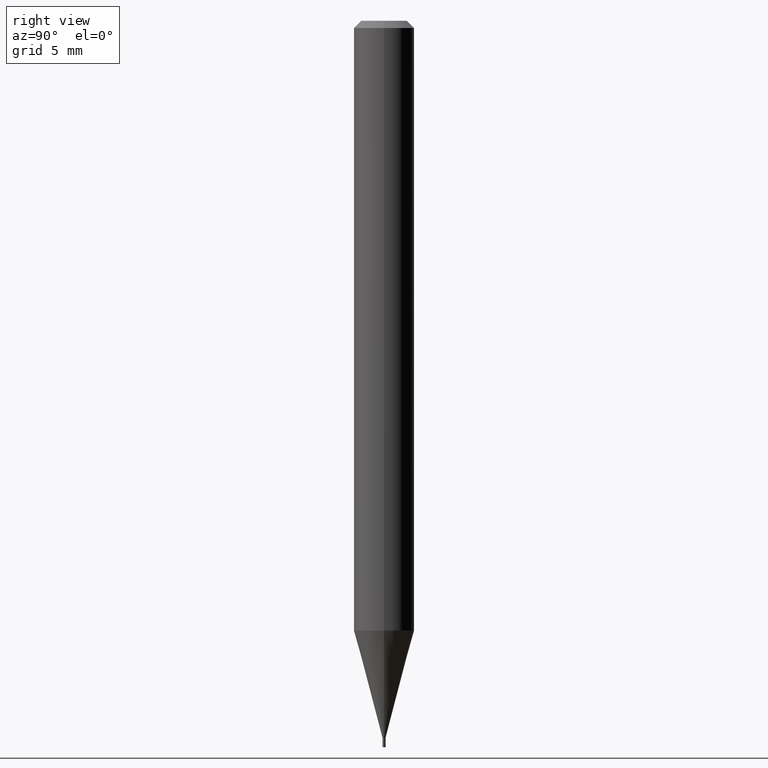
[diagram: clean part render]
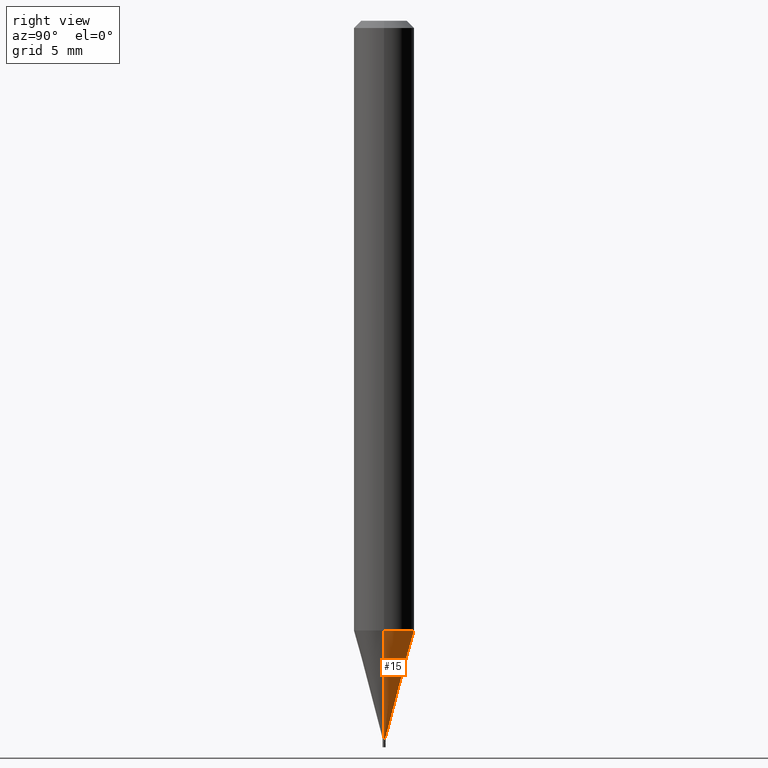
[diagram: same view with one face highlighted and labeled with its STEP entity id]
A machine part, right view. The second image highlights one B-rep face of the part: STEP entity #15.
In plain terms, the highlighted conical surface has half-angle 15 deg.
Its self-contained STEP definition (entity closure, byte-faithful):
#15 = ADVANCED_FACE ( 'NONE', ( #465 ), #297, .T. ) ;
#52 = CIRCLE ( 'NONE', #369, 0.06250000000000000000 ) ;
#56 = ORIENTED_EDGE ( 'NONE', *, *, #246, .F. ) ;
#65 = VERTEX_POINT ( 'NONE', #120 ) ;
#71 = ORIENTED_EDGE ( 'NONE', *, *, #289, .F. ) ;
#83 = DIRECTION ( 'NONE',  ( -0.2588190451025213501, 5.211531920934551042E-15, 0.9659258262890682012 ) ) ;
#111 = DIRECTION ( 'NONE',  ( -2.445468806185136597E-29, 3.491481338843145583E-15, 1.000000000000000000 ) ) ;
#120 = CARTESIAN_POINT ( 'NONE',  ( 0.002999999999999921566, -5.191832750859756717E-15, -1.481000000000000094 ) ) ;
#127 = AXIS2_PLACEMENT_3D ( 'NONE', #139, #432, #220 ) ;
#128 = VECTOR ( 'NONE', #83, 39.37007874015747433 ) ;
#139 = CARTESIAN_POINT ( 'NONE',  ( 3.621739301960187407E-29, -5.170883862826698675E-15, -1.481000000000000094 ) ) ;
#142 = EDGE_LOOP ( 'NONE', ( #180, #196, #71, #56 ) ) ;
#143 = CARTESIAN_POINT ( 'NONE',  ( -0.06250000000000000000, -3.951486700837283992E-15, -1.258942976949652293 ) ) ;
#176 = VERTEX_POINT ( 'NONE', #279 ) ;
#180 = ORIENTED_EDGE ( 'NONE', *, *, #386, .T. ) ;
#196 = ORIENTED_EDGE ( 'NONE', *, *, #372, .T. ) ;
#220 = DIRECTION ( 'NONE',  ( 1.000000000000000000, -6.982962677686191769E-15, 0.000000000000000000 ) ) ;
#229 = CARTESIAN_POINT ( 'NONE',  ( 3.621739301960187407E-29, -5.170883862826698675E-15, -1.481000000000000094 ) ) ;
#244 = VERTEX_POINT ( 'NONE', #255 ) ;
#246 = EDGE_CURVE ( 'NONE', #65, #176, #254, .T. ) ;
#254 = LINE ( 'NONE', #327, #291 ) ;
#255 = CARTESIAN_POINT ( 'NONE',  ( -0.002999999999999921566, -4.550527140795590610E-15, -1.481000000000000094 ) ) ;
#265 = LINE ( 'NONE', #406, #128 ) ;
#274 = CIRCLE ( 'NONE', #363, 0.002999999999999921566 ) ;
#276 = VERTEX_POINT ( 'NONE', #143 ) ;
#279 = CARTESIAN_POINT ( 'NONE',  ( 0.06250000000000000000, -4.832011078042738278E-15, -1.258942976949652293 ) ) ;
#289 = EDGE_CURVE ( 'NONE', #176, #276, #52, .T. ) ;
#291 = VECTOR ( 'NONE', #329, 39.37007874015747433 ) ;
#297 = CONICAL_SURFACE ( 'NONE', #127, 0.002999999999999921566, 0.2617993877991500740 ) ;
#299 = DIRECTION ( 'NONE',  ( -2.445468806185136597E-29, 3.491481338843145583E-15, 1.000000000000000000 ) ) ;
#327 = CARTESIAN_POINT ( 'NONE',  ( 0.002999999999999921566, -5.191832750859756717E-15, -1.481000000000000094 ) ) ;
#329 = DIRECTION ( 'NONE',  ( 0.2588190451025213501, 1.565188264969621968E-15, 0.9659258262890682012 ) ) ;
#360 = CARTESIAN_POINT ( 'NONE',  ( 3.078705778896227940E-29, -4.395575910687346608E-15, -1.258942976949652293 ) ) ;
#363 = AXIS2_PLACEMENT_3D ( 'NONE', #229, #299, #446 ) ;
#369 = AXIS2_PLACEMENT_3D ( 'NONE', #360, #111, #437 ) ;
#372 = EDGE_CURVE ( 'NONE', #244, #276, #265, .T. ) ;
#386 = EDGE_CURVE ( 'NONE', #65, #244, #274, .T. ) ;
#406 = CARTESIAN_POINT ( 'NONE',  ( -0.002999999999999921566, -5.149567580753896439E-15, -1.481000000000000094 ) ) ;
#432 = DIRECTION ( 'NONE',  ( -2.445468806185136597E-29, 3.491481338843145583E-15, 1.000000000000000000 ) ) ;
#437 = DIRECTION ( 'NONE',  ( 1.000000000000000000, -6.982962677686262766E-15, 0.000000000000000000 ) ) ;
#446 = DIRECTION ( 'NONE',  ( 1.000000000000000000, -6.982962677686191769E-15, 0.000000000000000000 ) ) ;
#465 = FACE_OUTER_BOUND ( 'NONE', #142, .T. ) ;